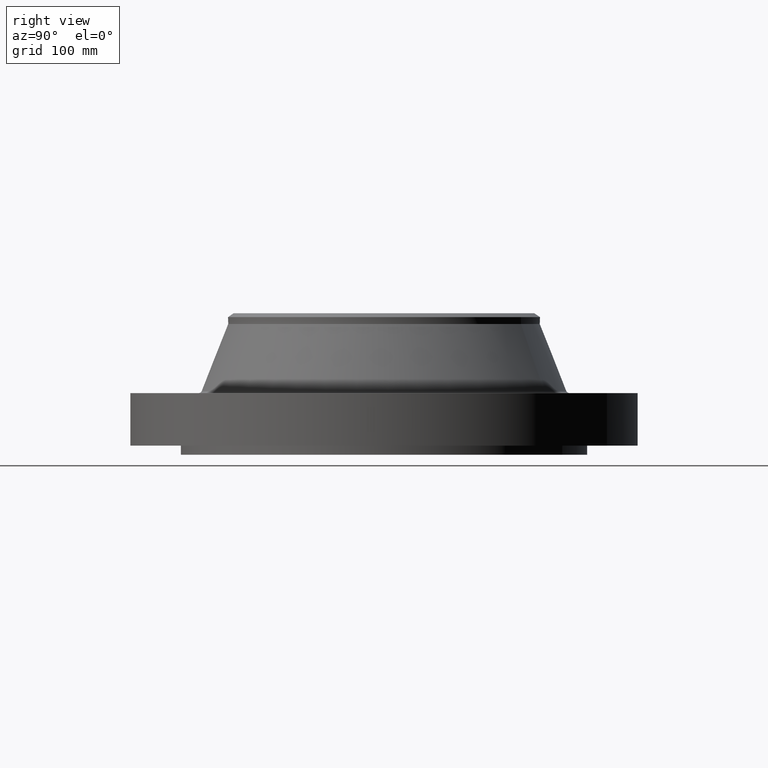
[diagram: clean part render]
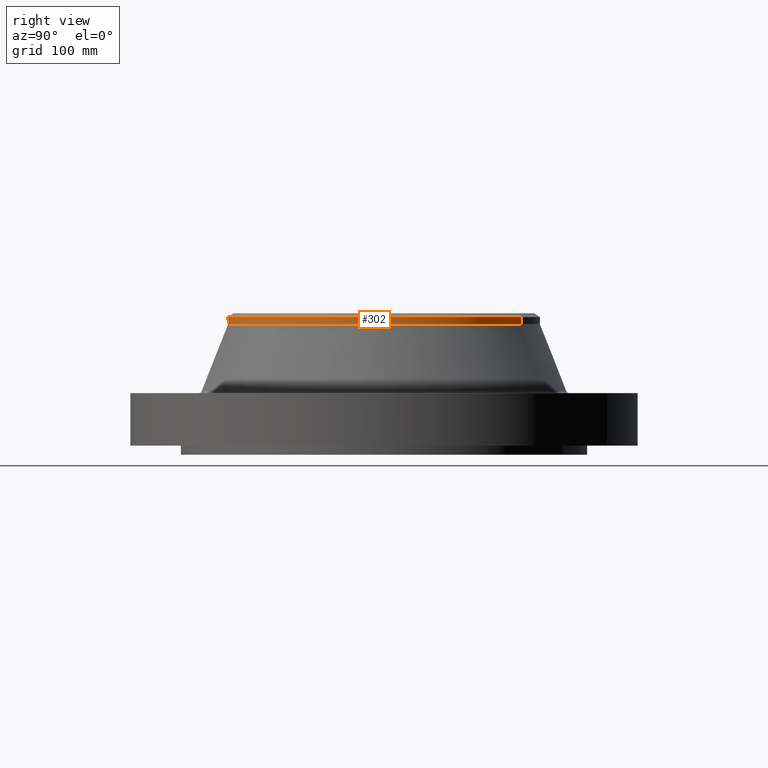
[diagram: same view with one face highlighted and labeled with its STEP entity id]
A machine part, right view. The second image highlights one B-rep face of the part: STEP entity #302.
In plain terms, the highlighted cylindrical surface (partial cylindrical patch) has radius 136.525 mm, axis along (0, 0, -1).
Its self-contained STEP definition (entity closure, byte-faithful):
#235=AXIS2_PLACEMENT_3D('Circle Axis2P3D',#233,#234,$) ;
#267=AXIS2_PLACEMENT_3D('Cylinder Axis2P3D',#264,#265,#266) ;
#285=AXIS2_PLACEMENT_3D('Circle Axis2P3D',#283,#284,$) ;
#292=AXIS2_PLACEMENT_3D('Circle Axis2P3D',#290,#291,$) ;
#230=CARTESIAN_POINT('Vertex',(2.57691227001,4.71700627018,4.19236722845)) ;
#233=CARTESIAN_POINT('Axis2P3D Location',(0.,0.,4.19236722845)) ;
#237=CARTESIAN_POINT('Vertex',(-2.57691227001,-4.71700627018,4.19236722845)) ;
#264=CARTESIAN_POINT('Axis2P3D Location',(0.,0.,2.12350000001)) ;
#269=CARTESIAN_POINT('Line Origine',(-2.57691227001,-4.71700627018,4.31047746467)) ;
#273=CARTESIAN_POINT('Vertex',(-2.57691227001,-4.71700627018,4.4285877009)) ;
#276=CARTESIAN_POINT('Line Origine',(2.57691227001,4.71700627018,4.31047746467)) ;
#280=CARTESIAN_POINT('Vertex',(2.57691227001,4.71700627018,4.4285877009)) ;
#283=CARTESIAN_POINT('Axis2P3D Location',(0.,0.,4.4285877009)) ;
#287=CARTESIAN_POINT('Vertex',(2.57691227001,-4.71700627018,4.4285877009)) ;
#290=CARTESIAN_POINT('Axis2P3D Location',(0.,0.,4.4285877009)) ;
#234=DIRECTION('Axis2P3D Direction',(0.,0.,-0.0393700787402)) ;
#265=DIRECTION('Axis2P3D Direction',(0.,0.,-0.0393700787402)) ;
#266=DIRECTION('Axis2P3D XDirection',(-0.0188750212049,-0.0345504945626,0.)) ;
#270=DIRECTION('Vector Direction',(0.,0.,-0.0393700787402)) ;
#277=DIRECTION('Vector Direction',(0.,0.,-0.0393700787402)) ;
#284=DIRECTION('Axis2P3D Direction',(0.,0.,-0.0393700787402)) ;
#291=DIRECTION('Axis2P3D Direction',(0.,0.,-0.0393700787402)) ;
#271=VECTOR('Line Direction',#270,0.0393700787402) ;
#278=VECTOR('Line Direction',#277,0.0393700787402) ;
#296=ORIENTED_EDGE('',*,*,#275,.F.) ;
#297=ORIENTED_EDGE('',*,*,#239,.F.) ;
#298=ORIENTED_EDGE('',*,*,#282,.T.) ;
#299=ORIENTED_EDGE('',*,*,#289,.F.) ;
#300=ORIENTED_EDGE('',*,*,#294,.T.) ;
#302=ADVANCED_FACE('PartBody',(#301),#268,.T.) ;
#236=CIRCLE('generated circle',#235,5.37500000002) ;
#286=CIRCLE('generated circle',#285,5.37500000002) ;
#293=CIRCLE('generated circle',#292,5.37500000002) ;
#268=CYLINDRICAL_SURFACE('generated cylinder',#267,5.37500000002) ;
#239=EDGE_CURVE('',#231,#238,#236,.T.) ;
#275=EDGE_CURVE('',#238,#274,#272,.F.) ;
#282=EDGE_CURVE('',#231,#281,#279,.F.) ;
#289=EDGE_CURVE('',#288,#281,#286,.F.) ;
#294=EDGE_CURVE('',#288,#274,#293,.T.) ;
#295=EDGE_LOOP('',(#296,#297,#298,#299,#300)) ;
#301=FACE_OUTER_BOUND('',#295,.T.) ;
#272=LINE('Line',#269,#271) ;
#279=LINE('Line',#276,#278) ;
#231=VERTEX_POINT('',#230) ;
#238=VERTEX_POINT('',#237) ;
#274=VERTEX_POINT('',#273) ;
#281=VERTEX_POINT('',#280) ;
#288=VERTEX_POINT('',#287) ;